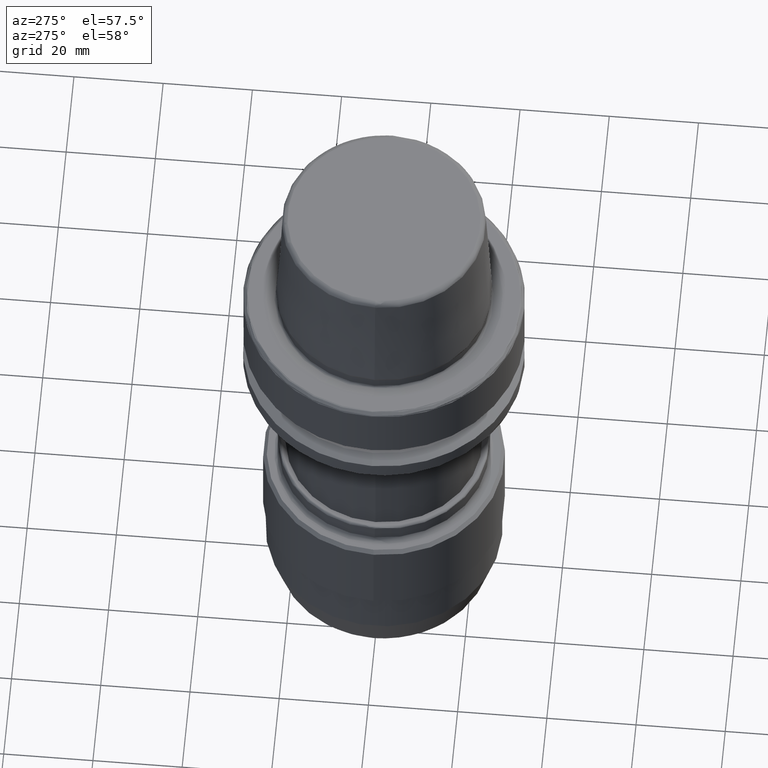
[diagram: clean part render]
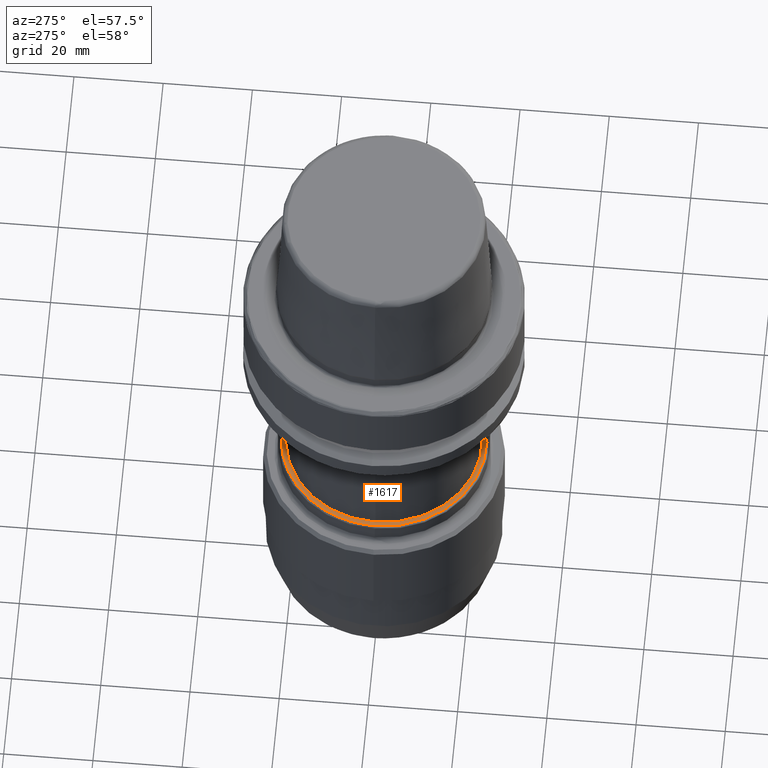
[diagram: same view with one face highlighted and labeled with its STEP entity id]
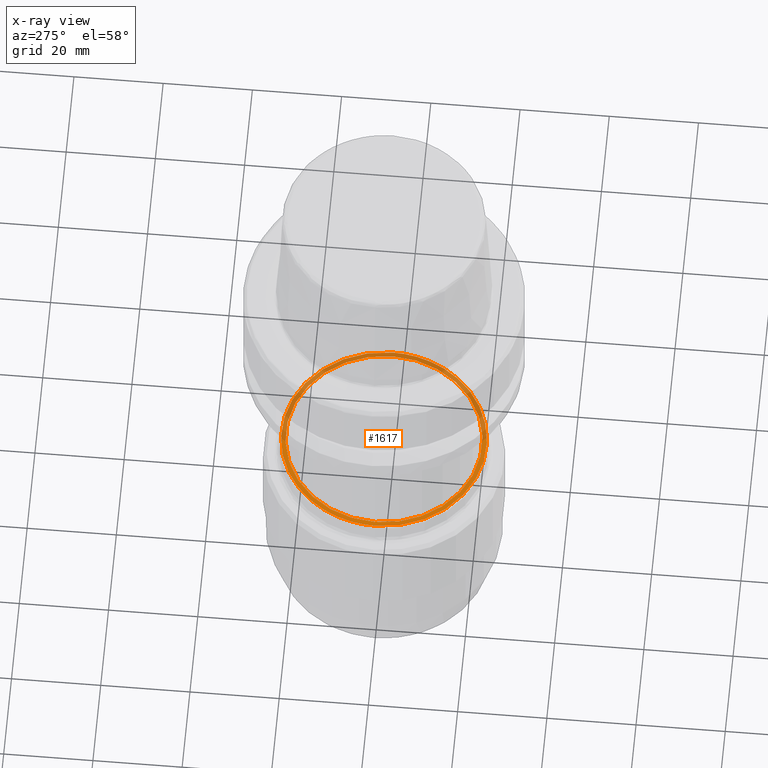
[diagram: x-ray of the same camera — body ghosted, the highlighted face saturated]
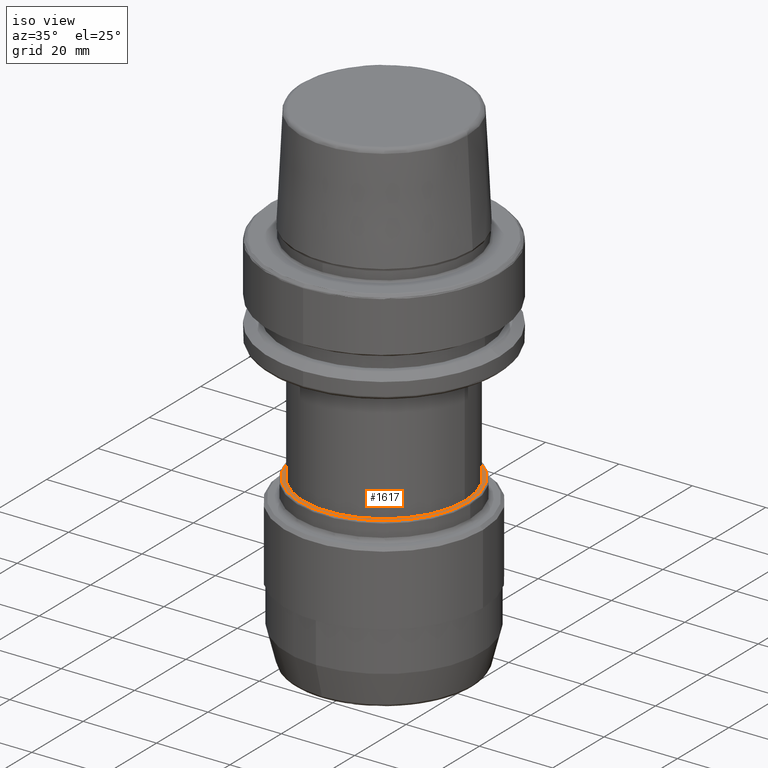
[diagram: same view with one face highlighted and labeled with its STEP entity id]
A machine part, auxiliary view. The second image highlights one B-rep face of the part: STEP entity #1617.
The next image is the same camera in x-ray: the body ghosted, the highlighted face saturated — about 50% of this face is hidden behind the body in this view.
A second angle (iso view) of the same face is appended — the face is thin or edge-on in the first view.
In plain terms, the highlighted planar face has unit normal (0, 0, 1).
Its self-contained STEP definition (entity closure, byte-faithful):
#16 = CIRCLE ( 'NONE', #2856, 22.00000000000000000 ) ;
#35 = CARTESIAN_POINT ( 'NONE',  ( 20.66522424574176100, -10.09697488967564500, -59.49999999999999300 ) ) ;
#47 = CARTESIAN_POINT ( 'NONE',  ( 22.05992292392925700, -6.508493612026682300, -59.49999999999999300 ) ) ;
#52 = CARTESIAN_POINT ( 'NONE',  ( -20.79786083574472900, -9.821447311092566000, -59.50000000000000000 ) ) ;
#63 = CARTESIAN_POINT ( 'NONE',  ( 22.93215339313308800, -2.040091979022315500, -59.50000000000000700 ) ) ;
#86 = CARTESIAN_POINT ( 'NONE',  ( 15.08453624196029900, -17.36258499187869500, -59.50000000000000700 ) ) ;
#99 = CARTESIAN_POINT ( 'NONE',  ( 2.387982325141912600, -22.87695554781839700, -59.50000000000002100 ) ) ;
#102 = CIRCLE ( 'NONE', #308, 22.00000000000000000 ) ;
#111 = CARTESIAN_POINT ( 'NONE',  ( -20.70977871296102500, -10.00527097587450200, -59.50000000000000700 ) ) ;
#120 = CARTESIAN_POINT ( 'NONE',  ( 22.79885930809124200, 3.035180820998445200, -59.50000000000001400 ) ) ;
#121 = CARTESIAN_POINT ( 'NONE',  ( -18.45597381487192500, -13.72506864018222700, -59.50000000000000700 ) ) ;
#124 = ORIENTED_EDGE ( 'NONE', *, *, #3250, .T. ) ;
#126 = CARTESIAN_POINT ( 'NONE',  ( 20.53658639873601300, -10.35675156209093100, -59.50000000000000000 ) ) ;
#130 = CARTESIAN_POINT ( 'NONE',  ( 21.15201609605264500, 9.043343005588173600, -59.50000000000000700 ) ) ;
#131 = CARTESIAN_POINT ( 'NONE',  ( -22.09765112123246700, -6.379211892784336000, -59.50000000000000000 ) ) ;
#147 = CARTESIAN_POINT ( 'NONE',  ( 19.67878119363517100, 11.90571376356794200, -59.50000000000000000 ) ) ;
#149 = CARTESIAN_POINT ( 'NONE',  ( -16.61255570229569800, -15.91203029314741000, -59.49999999999999300 ) ) ;
#154 = DIRECTION ( 'NONE',  ( 0.0000000000000000000, 0.0000000000000000000, 1.000000000000000000 ) ) ;
#159 = CARTESIAN_POINT ( 'NONE',  ( 17.12367565320339900, 15.35567057690230500, -59.50000000000001400 ) ) ;
#168 = CARTESIAN_POINT ( 'NONE',  ( 14.30461680220053100, 18.01945522958110900, -59.49999999999999300 ) ) ;
#172 = AXIS2_PLACEMENT_3D ( 'NONE', #2687, #154, #2124 ) ;
#182 = CARTESIAN_POINT ( 'NONE',  ( 10.41982548758412900, 20.50943807753031200, -59.50000000000000000 ) ) ;
#194 = FACE_BOUND ( 'NONE', #3175, .T. ) ;
#195 = CARTESIAN_POINT ( 'NONE',  ( 5.200894302168799200, 22.40930823104833500, -59.50000000000000700 ) ) ;
#196 = CARTESIAN_POINT ( 'NONE',  ( 18.37046913865779600, -13.83930719918026500, -59.49999999999998600 ) ) ;
#207 = CARTESIAN_POINT ( 'NONE',  ( -4.038782402329498900, 22.65138241706130600, -59.50000000000002100 ) ) ;
#220 = CARTESIAN_POINT ( 'NONE',  ( -9.389816576225857900, 21.00473986116978200, -59.50000000000002100 ) ) ;
#221 = CARTESIAN_POINT ( 'NONE',  ( -21.58466066212036000, -7.990724506890395600, -59.50000000000000700 ) ) ;
#234 = CARTESIAN_POINT ( 'NONE',  ( -13.44853690660021600, 18.66336242289260400, -59.50000000000000700 ) ) ;
#240 = CARTESIAN_POINT ( 'NONE',  ( -10.87399240271814300, -20.26720259355949200, -59.50000000000000700 ) ) ;
#247 = CARTESIAN_POINT ( 'NONE',  ( -16.85683675635345600, 15.64760918115961800, -59.50000000000002100 ) ) ;
#251 = CARTESIAN_POINT ( 'NONE',  ( -12.17288666840175500, -19.52351137654588300, -59.49999999999999300 ) ) ;
#257 = CARTESIAN_POINT ( 'NONE',  ( -19.48413069940165000, 12.22227024854963400, -59.50000000000000000 ) ) ;
#262 = CARTESIAN_POINT ( 'NONE',  ( 4.038782402347465900, -22.65138241705673400, -59.50000000000000700 ) ) ;
#270 = CARTESIAN_POINT ( 'NONE',  ( -20.96001517139128700, 9.492309152873602300, -59.50000000000000000 ) ) ;
#282 = CARTESIAN_POINT ( 'NONE',  ( -22.72456693722626800, 3.554048444780064700, -59.50000000000002800 ) ) ;
#284 = CARTESIAN_POINT ( 'NONE',  ( -22.85211559814503000, -2.609520141429211300, -59.50000000000002800 ) ) ;
#306 = CARTESIAN_POINT ( 'NONE',  ( -7.234871626525709600, -21.84127853978892700, -59.50000000000000000 ) ) ;
#308 = AXIS2_PLACEMENT_3D ( 'NONE', #3008, #1301, #3314 ) ;
#320 = CARTESIAN_POINT ( 'NONE',  ( 20.39588934328472500, -10.63310135159051300, -59.50000000000000000 ) ) ;
#333 = CARTESIAN_POINT ( 'NONE',  ( 22.07428257155218200, -6.459576964124560000, -59.50000000000000700 ) ) ;
#339 = CARTESIAN_POINT ( 'NONE',  ( 10.62108004713757500, -20.40087980775835400, -59.50000000000000700 ) ) ;
#345 = CARTESIAN_POINT ( 'NONE',  ( 22.99999999587038200, 0.0000000000000000000, -59.49999999984027700 ) ) ;
#373 = CARTESIAN_POINT ( 'NONE',  ( 14.55116244014986500, -17.81416953367102400, -59.50000000000000000 ) ) ;
#385 = CARTESIAN_POINT ( 'NONE',  ( 3.335386668910615500, -22.76184523986317700, -59.50000000000000000 ) ) ;
#395 = CARTESIAN_POINT ( 'NONE',  ( 10.77452794148912800, -20.32025034848193500, -59.50000000000001400 ) ) ;
#411 = CARTESIAN_POINT ( 'NONE',  ( 22.57255135874123700, 4.479785530892701900, -59.50000000000002100 ) ) ;
#425 = CARTESIAN_POINT ( 'NONE',  ( 20.79786083575651600, 9.821447311064627400, -59.50000000000000700 ) ) ;
#426 = CARTESIAN_POINT ( 'NONE',  ( -22.08505879249765200, -6.422635208564694100, -59.50000000000000000 ) ) ;
#434 = CARTESIAN_POINT ( 'NONE',  ( 19.46167955326121700, 12.26308115030154000, -59.50000000000000700 ) ) ;
#435 = CARTESIAN_POINT ( 'NONE',  ( -15.65945506830770200, -16.84802598621485400, -59.50000000000001400 ) ) ;
#444 = CARTESIAN_POINT ( 'NONE',  ( 16.95838721572216600, 15.53749148302091900, -59.50000000000002100 ) ) ;
#455 = CARTESIAN_POINT ( 'NONE',  ( 13.40309264651337500, 18.69163638887289700, -59.50000000000001400 ) ) ;
#467 = CARTESIAN_POINT ( 'NONE',  ( 9.073893686292329600, 21.13662212336848300, -59.50000000000000000 ) ) ;
#476 = CARTESIAN_POINT ( 'NONE',  ( 3.804147953302674500, 22.68449142458442200, -59.50000000000001400 ) ) ;
#477 = CARTESIAN_POINT ( 'NONE',  ( 18.62429182585068000, -13.50095831894854800, -59.50000000000001400 ) ) ;
#487 = CARTESIAN_POINT ( 'NONE',  ( -5.199710901648903600, 22.40485234171319500, -59.50000000000000700 ) ) ;
#504 = CARTESIAN_POINT ( 'NONE',  ( -10.46878282113388900, 20.47993162504294400, -59.50000000000000700 ) ) ;
#505 = CARTESIAN_POINT ( 'NONE',  ( 7.564360981174422300, -21.72273286849345900, -59.50000000000000000 ) ) ;
#514 = CARTESIAN_POINT ( 'NONE',  ( -14.55116244017394700, 17.81416953364976100, -59.50000000000001400 ) ) ;
#526 = CARTESIAN_POINT ( 'NONE',  ( -17.15852861154048600, 15.32121843342708800, -59.50000000000000700 ) ) ;
#532 = CARTESIAN_POINT ( 'NONE',  ( -10.92149909948859600, -20.24163703822136600, -59.49999999999999300 ) ) ;
#539 = CARTESIAN_POINT ( 'NONE',  ( -19.60706401786943300, 12.02345695376921100, -59.49999999999999300 ) ) ;
#551 = CARTESIAN_POINT ( 'NONE',  ( -21.73762290850370600, 7.527653890420124200, -59.50000000000001400 ) ) ;
#554 = CARTESIAN_POINT ( 'NONE',  ( 12.77481738688463200, -19.12657107637325600, -59.50000000000000700 ) ) ;
#558 = CARTESIAN_POINT ( 'NONE',  ( -22.77935982841406900, 3.178523364605224900, -59.49999999999999300 ) ) ;
#559 = CARTESIAN_POINT ( 'NONE',  ( -22.81106972563253500, -2.942247673499529100, -59.50000000000002100 ) ) ;
#594 = EDGE_CURVE ( 'NONE', #1153, #2109, #1646, .T. ) ;
#606 = CARTESIAN_POINT ( 'NONE',  ( 22.24197725999282600, -5.884695386095676100, -59.49999999999999300 ) ) ;
#609 = CARTESIAN_POINT ( 'NONE',  ( 8.113461293119472700, -21.52150413981969000, -59.50000000000001400 ) ) ;
#673 = CARTESIAN_POINT ( 'NONE',  ( 22.99999999587038200, 0.0000000000000000000, -59.49999999984027700 ) ) ;
#675 = CARTESIAN_POINT ( 'NONE',  ( 11.79361950100164700, -19.75492928910628300, -59.50000000000000700 ) ) ;
#688 = CARTESIAN_POINT ( 'NONE',  ( 22.21712838802288600, 5.952848647696162000, -59.50000000000000700 ) ) ;
#698 = CARTESIAN_POINT ( 'NONE',  ( 20.70977871296453900, 10.00527097586614500, -59.49999999999999300 ) ) ;
#699 = CARTESIAN_POINT ( 'NONE',  ( -22.57255135873597100, -4.479785530957818700, -59.50000000000002100 ) ) ;
#712 = CARTESIAN_POINT ( 'NONE',  ( 18.78620911173731400, 13.27176532526140900, -59.50000000000000700 ) ) ;
#713 = CARTESIAN_POINT ( 'NONE',  ( -15.27781081951261800, -17.19276222298245200, -59.50000000000001400 ) ) ;
#724 = CARTESIAN_POINT ( 'NONE',  ( 16.90925625284416300, 15.59094892657418000, -59.50000000000001400 ) ) ;
#725 = CARTESIAN_POINT ( 'NONE',  ( 19.64428513433246000, -11.96254690846213200, -59.50000000000000000 ) ) ;
#732 = CARTESIAN_POINT ( 'NONE',  ( 13.18414993370315200, 18.84624616094537300, -59.50000000000001400 ) ) ;
#746 = CARTESIAN_POINT ( 'NONE',  ( 8.545015114365901000, 21.35382750747576000, -59.50000000000000700 ) ) ;
#760 = CARTESIAN_POINT ( 'NONE',  ( 3.101440613758909700, 22.79118601701064900, -59.50000000000000700 ) ) ;
#762 = CARTESIAN_POINT ( 'NONE',  ( 19.30919508850941900, -12.49865517238154000, -59.50000000000001400 ) ) ;
#775 = CARTESIAN_POINT ( 'NONE',  ( -5.548134250651418000, 22.32110591976023500, -59.50000000000001400 ) ) ;
#786 = CARTESIAN_POINT ( 'NONE',  ( -10.72243621599578000, 20.34779009984131500, -59.50000000000000700 ) ) ;
#797 = CARTESIAN_POINT ( 'NONE',  ( -14.96107667132794100, 17.46908692421600400, -59.50000000000001400 ) ) ;
#811 = CARTESIAN_POINT ( 'NONE',  ( -17.98026825603988500, 14.34495984953208800, -59.50000000000002100 ) ) ;
#820 = CARTESIAN_POINT ( 'NONE',  ( -19.64428513433109900, 11.96254690846489900, -59.50000000000000000 ) ) ;
#832 = CARTESIAN_POINT ( 'NONE',  ( -21.99863450026362300, 6.713562252800826100, -59.50000000000002800 ) ) ;
#835 = CARTESIAN_POINT ( 'NONE',  ( -19.70169133256450100, -11.86776224913700900, -59.50000000000000000 ) ) ;
#838 = CARTESIAN_POINT ( 'NONE',  ( -11.16531239952258000, -20.10864162827591200, -59.50000000000000000 ) ) ;
#848 = CARTESIAN_POINT ( 'NONE',  ( -22.79163671802236000, 3.088946796763883700, -59.50000000000001400 ) ) ;
#872 = CARTESIAN_POINT ( 'NONE',  ( -13.14173749839774400, -18.87585134383119400, -59.50000000000000700 ) ) ;
#898 = CARTESIAN_POINT ( 'NONE',  ( 22.64336211516326700, -4.052991602755052500, -59.50000000000002100 ) ) ;
#902 = CARTESIAN_POINT ( 'NONE',  ( 8.278767660438102600, -21.45845325741526800, -59.50000000000002100 ) ) ;
#913 = CARTESIAN_POINT ( 'NONE',  ( -23.00000000080507000, -0.5110257653236590600, -59.50000000000000700 ) ) ;
#923 = CARTESIAN_POINT ( 'NONE',  ( 15.88687213992910300, -16.64045058434382100, -59.50000000000001400 ) ) ;
#958 = CARTESIAN_POINT ( 'NONE',  ( 22.97455752292806600, 1.275932257485925500, -59.50000000000001400 ) ) ;
#959 = CARTESIAN_POINT ( 'NONE',  ( 9.389816576232263400, -21.00473986117243900, -59.50000000000000000 ) ) ;
#963 = ORIENTED_EDGE ( 'NONE', *, *, #2323, .T. ) ;
#972 = CARTESIAN_POINT ( 'NONE',  ( 22.11515650682025600, 6.318393553546652400, -59.50000000000002100 ) ) ;
#989 = CARTESIAN_POINT ( 'NONE',  ( 20.68386182690957400, 10.05874386595311500, -59.50000000000000700 ) ) ;
#991 = CARTESIAN_POINT ( 'NONE',  ( -22.80485818318208400, -2.989757863450289900, -59.50000000000000000 ) ) ;
#1003 = CARTESIAN_POINT ( 'NONE',  ( 18.49779840918533600, 13.66876692144525400, -59.50000000000002800 ) ) ;
#1004 = CARTESIAN_POINT ( 'NONE',  ( -15.16366414224429900, -17.29352784975865400, -59.50000000000000700 ) ) ;
#1015 = CARTESIAN_POINT ( 'NONE',  ( 16.18205556853752500, 16.35354234595758900, -59.50000000000000000 ) ) ;
#1016 = CARTESIAN_POINT ( 'NONE',  ( 20.10511678210353300, -11.18055066940808100, -59.50000000000000000 ) ) ;
#1027 = CARTESIAN_POINT ( 'NONE',  ( 12.73086870021281000, 19.16044903814865600, -59.50000000000000000 ) ) ;
#1028 = CARTESIAN_POINT ( 'NONE',  ( 17.98026825602925900, -14.34495984954654300, -59.50000000000002100 ) ) ;
#1042 = CARTESIAN_POINT ( 'NONE',  ( 8.386603094788474900, 21.41654147720387500, -59.50000000000001400 ) ) ;
#1051 = CARTESIAN_POINT ( 'NONE',  ( 0.9579673822228034200, 22.99997709239239200, -59.49999999999999300 ) ) ;
#1052 = CARTESIAN_POINT ( 'NONE',  ( 19.57036852003459200, -12.08322835671327400, -59.50000000000000700 ) ) ;
#1063 = CARTESIAN_POINT ( 'NONE',  ( -6.789185065614785400, 21.98389862216602700, -59.50000000000000000 ) ) ;
#1064 = CARTESIAN_POINT ( 'NONE',  ( -1.913303693207689900, -22.94031429927654000, -59.50000000000000700 ) ) ;
#1081 = CARTESIAN_POINT ( 'NONE',  ( -11.21554117738053500, 20.08505603816933400, -59.50000000000002800 ) ) ;
#1089 = CARTESIAN_POINT ( 'NONE',  ( -15.08453624195899100, 17.36258499187981000, -59.50000000000001400 ) ) ;
#1095 = CARTESIAN_POINT ( 'NONE',  ( -10.41982548754693600, -20.50943807754625700, -59.50000000000000700 ) ) ;
#1100 = CARTESIAN_POINT ( 'NONE',  ( -18.29632699985511500, 13.93730814982911400, -59.50000000000000000 ) ) ;
#1114 = CARTESIAN_POINT ( 'NONE',  ( -20.10511678214136600, 11.18055066933046000, -59.50000000000001400 ) ) ;
#1119 = CARTESIAN_POINT ( 'NONE',  ( -3.804147953256559900, -22.68449142459822500, -59.50000000000001400 ) ) ;
#1127 = CARTESIAN_POINT ( 'NONE',  ( -22.05992292393043600, 6.508493612024240700, -59.50000000000001400 ) ) ;
#1131 = CARTESIAN_POINT ( 'NONE',  ( -19.66791802568312200, -11.92365386745089500, -59.50000000000000000 ) ) ;
#1141 = CARTESIAN_POINT ( 'NONE',  ( -22.93215339313307800, 2.040091979048324100, -59.50000000000002100 ) ) ;
#1144 = CARTESIAN_POINT ( 'NONE',  ( -8.438680508779755800, -21.39607133540687700, -59.50000000000002100 ) ) ;
#1153 = VERTEX_POINT ( 'NONE', #1391 ) ;
#1180 = CARTESIAN_POINT ( 'NONE',  ( 21.35013890892946300, -8.597720792739854900, -59.50000000000001400 ) ) ;
#1183 = CARTESIAN_POINT ( 'NONE',  ( -20.68386182690940000, -10.05874386595377600, -59.50000000000000700 ) ) ;
#1191 = CARTESIAN_POINT ( 'NONE',  ( 22.76167750519537200, -3.303823887688162900, -59.50000000000000000 ) ) ;
#1194 = CARTESIAN_POINT ( 'NONE',  ( -18.41473674897415700, -13.78035007690154700, -59.50000000000000000 ) ) ;
#1213 = EDGE_LOOP ( 'NONE', ( #963, #3410 ) ) ;
#1220 = CARTESIAN_POINT ( 'NONE',  ( 16.64557730038610500, -15.87272183321548600, -59.50000000000002800 ) ) ;
#1252 = CARTESIAN_POINT ( 'NONE',  ( 22.85211559814501900, 2.609520141439149600, -59.50000000000000700 ) ) ;
#1253 = CARTESIAN_POINT ( 'NONE',  ( -17.79884645723078400, -14.57642736041852400, -59.50000000000001400 ) ) ;
#1264 = CARTESIAN_POINT ( 'NONE',  ( 22.09010196977203200, 6.405267177904225000, -59.50000000000002800 ) ) ;
#1273 = CARTESIAN_POINT ( 'NONE',  ( 20.27513429611365200, 10.86919169529050900, -59.49999999999999300 ) ) ;
#1274 = CARTESIAN_POINT ( 'NONE',  ( -22.79885930809134800, -3.035180820997282100, -59.50000000000000700 ) ) ;
#1279 = PLANE ( 'NONE',  #172 ) ;
#1283 = CARTESIAN_POINT ( 'NONE',  ( 18.42803141242499600, 13.76256380554665500, -59.50000000000002100 ) ) ;
#1284 = CARTESIAN_POINT ( 'NONE',  ( -17.00816543121250700, -15.48310221194310400, -59.50000000000000000 ) ) ;
#1297 = CARTESIAN_POINT ( 'NONE',  ( 15.39306723202918700, 17.09011436777881000, -59.50000000000000000 ) ) ;
#1301 = DIRECTION ( 'NONE',  ( -0.0000000000000000000, 0.0000000000000000000, -1.000000000000000000 ) ) ;
#1308 = CARTESIAN_POINT ( 'NONE',  ( 11.50413293801884300, 19.91838191012276800, -59.50000000000000000 ) ) ;
#1309 = CARTESIAN_POINT ( 'NONE',  ( 16.85683675635217300, -15.64760918116070700, -59.50000000000000700 ) ) ;
#1320 = CARTESIAN_POINT ( 'NONE',  ( 7.234871626526063100, 21.84127853979145000, -59.50000000000001400 ) ) ;
#1332 = CARTESIAN_POINT ( 'NONE',  ( -1.196198113153990300, 22.97764650388889900, -59.50000000000001400 ) ) ;
#1333 = CARTESIAN_POINT ( 'NONE',  ( 19.63146911237730300, -11.98356890277593900, -59.50000000000000700 ) ) ;
#1341 = B_SPLINE_CURVE_WITH_KNOTS ( 'NONE', 3,
 ( #673, #2654, #958, #2953, #1252, #3257, #1526, #3554, #1814, #120, #2095, #411, #2380, #688, #2670, #972, #2962, #1264, #3271, #1536, #3567, #1831, #130, #2104, #425, #2396, #698, #2682, #989, #2976, #1273, #3288, #1550, #3580, #1842, #147, #2117, #434, #2410, #712, #2697, #1003, #2990, #1283, #3294, #1565, #3595, #1850, #159, #2132, #444, #2417, #724, #2713, #1015, #3004, #1297, #3308, #1575, #3603, #1862, #168, #2142, #455, #2427, #732, #2727, #1027, #3014, #1308, #3321, #1585, #3610, #1878, #182, #2151, #467, #2441, #746, #2737, #1042, #3032, #1320, #3334, #1599, #3619, #1886, #195, #2163, #476, #2452, #760, #2746, #1051, #3047, #1332, #3348, #1612, #3636, #1899, #207, #2179, #487, #2463, #775, #2763, #1063, #3059, #1348, #3364, #1621, #3649, #1915, #220, #2188, #504, #2479, #786, #2776, #1081, #3070, #1358, #3382, #1636, #3659, #1928, #234, #2199, #514, #2495, #797, #2785, #1089, #3088, #1368, #3388, #1651, #3672, #1936, #247, #2215, #526, #2504, #811, #2796, #1100, #3098, #1381, #3400, #1661, #3682, #1947, #257, #2230, #539, #2516, #820, #2807, #1114, #3108, #1392, #3417, #1669, #3693, #1960, #270, #2239, #551, #2531, #832, #2818, #1127, #3120, #1400, #3429, #1685, #3701, #1971, #282, #2252, #558, #2543, #848, #2830, #1141, #3137, #1411 ),
 .UNSPECIFIED., .F., .F.,
 ( 4, 1, 1, 1, 1, 1, 2, 2, 1, 1, 1, 1, 1, 1, 2, 2, 1, 1, 1, 1, 1, 2, 2, 1, 1, 1, 1, 2, 2, 1, 1, 1, 1, 2, 2, 1, 1, 1, 1, 2, 2, 1, 1, 1, 2, 2, 1, 1, 1, 2, 2, 1, 1, 1, 2, 2, 1, 1, 1, 2, 2, 1, 1, 2, 2, 1, 2, 2, 2, 1, 2, 2, 1, 1, 2, 2, 1, 1, 1, 2, 2, 1, 1, 1, 2, 2, 1, 1, 1, 2, 2, 1, 1, 1, 2, 2, 1, 1, 1, 1, 2, 2, 1, 1, 1, 1, 2, 2, 1, 1, 1, 1, 2, 2, 1, 1, 1, 1, 2, 2, 1, 1, 1, 1, 1, 1, 2, 2, 1, 1, 1, 1, 1, 2, 2, 4 ),
 ( 0.0000000000000000000, 0.03125000000001304500, 0.04687500000001956100, 0.05468750000002282200, 0.05859375000002442500, 0.06054687500002522300, 0.06152343750002562500, 0.06250000000002602100, 0.09375000000003924600, 0.1093750000000458400, 0.1171875000000491400, 0.1210937500000507800, 0.1230468750000516100, 0.1240234375000520400, 0.1245117187500521900, 0.1250000000000523500, 0.1562500000000647800, 0.1718750000000710300, 0.1796875000000741100, 0.1835937500000755800, 0.1855468750000763000, 0.1865234375000766100, 0.1875000000000769400, 0.2031250000000810200, 0.2109375000000830400, 0.2148437500000841000, 0.2167968750000846500, 0.2177734375000848800, 0.2187500000000851300, 0.2343750000000872600, 0.2421875000000882600, 0.2460937500000887600, 0.2480468750000891000, 0.2490234375000892100, 0.2500000000000893200, 0.2656250000000894800, 0.2734375000000895400, 0.2773437500000895400, 0.2792968750000895400, 0.2802734375000895900, 0.2812500000000895900, 0.2968750000000887600, 0.3046875000000883700, 0.3085937500000882100, 0.3105468750000880400, 0.3125000000000879300, 0.3281250000000873700, 0.3359375000000871500, 0.3398437500000871000, 0.3417968750000869900, 0.3437500000000869300, 0.3593750000000863200, 0.3671875000000861000, 0.3710937500000859900, 0.3730468750000858800, 0.3750000000000858200, 0.3906250000000854900, 0.3984375000000853800, 0.4023437500000853800, 0.4042968750000853200, 0.4062500000000853200, 0.4218750000000855400, 0.4296875000000857100, 0.4335937500000858200, 0.4375000000000858800, 0.4531250000000860400, 0.4609375000000861500, 0.4687500000000862600, 0.5000000000000867100, 0.5156250000000869300, 0.5234375000000870400, 0.5312500000000871500, 0.5468750000000873700, 0.5546875000000876000, 0.5585937500000876000, 0.5625000000000877100, 0.5781250000000880400, 0.5859375000000881500, 0.5898437500000882600, 0.5917968750000882600, 0.5937500000000882600, 0.6093750000000880400, 0.6171875000000879300, 0.6210937500000877100, 0.6230468750000877100, 0.6250000000000876000, 0.6406250000000872600, 0.6484375000000871500, 0.6523437500000871500, 0.6542968750000870400, 0.6562500000000869300, 0.6718750000000861500, 0.6796875000000858200, 0.6835937500000856000, 0.6855468750000856000, 0.6875000000000854900, 0.7031250000000846000, 0.7109375000000841500, 0.7148437500000839300, 0.7167968750000836000, 0.7177734375000834900, 0.7187500000000832700, 0.7343750000000799400, 0.7421875000000783800, 0.7460937500000774900, 0.7480468750000771600, 0.7490234375000769400, 0.7500000000000768300, 0.7656250000000731600, 0.7734375000000712800, 0.7773437500000703900, 0.7792968750000698300, 0.7802734375000696100, 0.7812500000000692800, 0.7968750000000645000, 0.8046875000000621700, 0.8085937500000609500, 0.8105468750000605100, 0.8115234375000601700, 0.8125000000000599500, 0.8437500000000509600, 0.8593750000000465200, 0.8671875000000443000, 0.8710937500000430800, 0.8730468750000426300, 0.8740234375000423000, 0.8745117187500421900, 0.8750000000000420800, 0.9062500000000310900, 0.9218750000000256500, 0.9296875000000229800, 0.9335937500000215400, 0.9355468750000209800, 0.9365234375000205400, 0.9375000000000202100, 1.000000000000000000 ),
 .UNSPECIFIED. ) ;
#1348 = CARTESIAN_POINT ( 'NONE',  ( -7.949150904697146000, 21.58321326709969400, -59.50000000000001400 ) ) ;
#1358 = CARTESIAN_POINT ( 'NONE',  ( -12.45065039449285700, 19.34084632841883400, -59.50000000000002800 ) ) ;
#1368 = CARTESIAN_POINT ( 'NONE',  ( -15.88687213994739800, 16.64045058432816800, -59.50000000000001400 ) ) ;
#1381 = CARTESIAN_POINT ( 'NONE',  ( -18.37046913865878800, 13.83930719917890600, -59.50000000000000700 ) ) ;
#1391 = CARTESIAN_POINT ( 'NONE',  ( -22.99999999587038200, 0.0000000000000000000, -59.49999999984027700 ) ) ;
#1392 = CARTESIAN_POINT ( 'NONE',  ( -20.53658639875257200, 10.35675156205695300, -59.50000000000001400 ) ) ;
#1400 = CARTESIAN_POINT ( 'NONE',  ( -22.07428257155253000, 6.459576964123860100, -59.50000000000001400 ) ) ;
#1406 = CARTESIAN_POINT ( 'NONE',  ( 5.199710901657570400, -22.40485234171100300, -59.50000000000000700 ) ) ;
#1411 = CARTESIAN_POINT ( 'NONE',  ( -22.99999999587038200, 0.0000000000000000000, -59.49999999984027700 ) ) ;
#1441 = CARTESIAN_POINT ( 'NONE',  ( -13.70685029090472500, -18.47168773512564500, -59.50000000000000000 ) ) ;
#1448 = CARTESIAN_POINT ( 'NONE',  ( 21.91444981804057700, -6.986025318777803000, -59.50000000000000000 ) ) ;
#1451 = CARTESIAN_POINT ( 'NONE',  ( -20.27513429611841600, -10.86919169527197600, -59.50000000000000000 ) ) ;
#1463 = CARTESIAN_POINT ( 'NONE',  ( 22.78675090391524400, -3.124782802317057000, -59.50000000000000000 ) ) ;
#1468 = CARTESIAN_POINT ( 'NONE',  ( -19.46167955328855800, -12.26308115026301400, -59.50000000000002100 ) ) ;
#1478 = CARTESIAN_POINT ( 'NONE',  ( -22.97455752292808000, -1.275932257463205000, -59.50000000000002100 ) ) ;
#1486 = CARTESIAN_POINT ( 'NONE',  ( 16.82178082617554400, -15.68528886550264400, -59.50000000000001400 ) ) ;
#1500 = CARTESIAN_POINT ( 'NONE',  ( 5.430872458285897200, -22.34993709043687500, -59.50000000000002100 ) ) ;
#1516 = CARTESIAN_POINT ( 'NONE',  ( -19.81536675388467500, -11.67753864580774000, -59.50000000000000000 ) ) ;
#1526 = CARTESIAN_POINT ( 'NONE',  ( 22.81106972563251700, 2.942247673502271800, -59.50000000000000700 ) ) ;
#1527 = CARTESIAN_POINT ( 'NONE',  ( -17.12367565323412300, -15.35567057686301600, -59.50000000000000000 ) ) ;
#1536 = CARTESIAN_POINT ( 'NONE',  ( 22.08285365257213700, 6.430215240748580600, -59.50000000000001400 ) ) ;
#1550 = CARTESIAN_POINT ( 'NONE',  ( 19.81536675388259300, 11.67753864581585100, -59.50000000000000700 ) ) ;
#1551 = CARTESIAN_POINT ( 'NONE',  ( -22.14973007337646400, -6.196666179316205000, -59.50000000000000000 ) ) ;
#1556 = DIRECTION ( 'NONE',  ( -0.0000000000000000000, 0.0000000000000000000, -1.000000000000000000 ) ) ;
#1565 = CARTESIAN_POINT ( 'NONE',  ( 18.16421202732236400, 14.11439877282844100, -59.50000000000001400 ) ) ;
#1566 = CARTESIAN_POINT ( 'NONE',  ( -16.92514088660818300, -15.57370115553536700, -59.50000000000000700 ) ) ;
#1575 = CARTESIAN_POINT ( 'NONE',  ( 15.20073094512945000, 17.26094872464309300, -59.50000000000000700 ) ) ;
#1585 = CARTESIAN_POINT ( 'NONE',  ( 11.01915138159462900, 20.18864388991801600, -59.50000000000002800 ) ) ;
#1599 = CARTESIAN_POINT ( 'NONE',  ( 6.114110776620983700, 22.17276689859021100, -59.50000000000002100 ) ) ;
#1601 = CARTESIAN_POINT ( 'NONE',  ( 18.34084828128858600, -13.87853809907892400, -59.50000000000001400 ) ) ;
#1612 = CARTESIAN_POINT ( 'NONE',  ( -2.387982325122137700, 22.87695554781972300, -59.49999999999999300 ) ) ;
#1617 = ADVANCED_FACE ( 'NONE', ( #194, #3140 ), #1279, .T. ) ;
#1621 = CARTESIAN_POINT ( 'NONE',  ( -8.222868312356240500, 21.47993916331692800, -59.50000000000000700 ) ) ;
#1636 = CARTESIAN_POINT ( 'NONE',  ( -12.91281428626457400, 19.03318873156422000, -59.50000000000002800 ) ) ;
#1646 = B_SPLINE_CURVE_WITH_KNOTS ( 'NONE', 3,
 ( #2902, #913, #1478, #3516, #284, #2256, #559, #991, #2977, #1274, #2397, #699, #2683, #3289, #1551, #3581, #131, #2105, #426, #3650, #1917, #221, #3488, #1741, #52, #1799, #111, #2083, #1183, #3185, #1451, #3244, #1516, #3541, #835, #2820, #1131, #1468, #3502, #1750, #3556, #1815, #121, #2891, #1194, #3199, #1253, #3258, #1527, #1284, #3295, #1566, #1843, #149, #2118, #435, #2411, #713, #2698, #1004, #2992, #3166, #1441, #3476, #1692, #1676, #872, #2221, #251, #1942, #838, #2508, #532, #240, #1095, #3093, #1715, #2571, #2013, #1144, #2823, #3461, #306, #2812, #3687, #3435, #2205, #3707, #2855, #1119, #2235, #2765, #1064, #3060, #3446, #2868, #3142, #99, #2067, #385, #262, #1703, #1406, #1500, #3528, #1791, #2189, #505, #2533, #609, #2596, #902, #2655, #959, #2954, #2024, #339, #2311, #395, #2366, #675, #2243, #554, #2276, #2790, #2500, #2521, #2057, #373, #2344, #3523, #1778, #86, #2615, #923, #2913, #1220, #3220, #1486, #1309, #3323, #3620, #1887, #1028, #3015, #3335, #1601, #196, #2164, #477, #2453, #762, #2747, #1052, #3049, #1333, #725, #2714, #1016, #320, #126, #1827, #3565, #2009, #35, #2874, #1180, #3180, #1448, #3484, #1738, #47, #2021, #333, #2307, #606, #2593, #898, #2886, #1191, #3197, #1463, #3498, #1747, #63, #2030, #345 ),
 .UNSPECIFIED., .F., .F.,
 ( 4, 1, 1, 1, 1, 1, 2, 2, 1, 1, 1, 1, 1, 1, 2, 2, 1, 1, 1, 1, 1, 2, 2, 1, 1, 1, 1, 2, 2, 1, 1, 1, 1, 2, 2, 1, 1, 1, 1, 2, 2, 1, 1, 1, 2, 2, 1, 1, 1, 2, 2, 1, 1, 1, 2, 2, 1, 1, 1, 2, 2, 1, 1, 2, 2, 1, 2, 2, 2, 1, 2, 2, 1, 1, 2, 2, 1, 1, 1, 2, 2, 1, 1, 1, 2, 2, 1, 1, 1, 2, 2, 1, 1, 1, 2, 2, 1, 1, 1, 1, 2, 2, 1, 1, 1, 1, 2, 2, 1, 1, 1, 1, 2, 2, 1, 1, 1, 1, 2, 2, 1, 1, 1, 1, 1, 1, 2, 2, 1, 1, 1, 1, 1, 2, 2, 4 ),
 ( 0.0000000000000000000, 0.03125000000000411500, 0.04687500000000616200, 0.05468750000000720300, 0.05859375000000773000, 0.06054687500000800700, 0.06152343750000813200, 0.06250000000000825700, 0.09375000000001236500, 0.1093750000000144100, 0.1171875000000154500, 0.1210937500000159200, 0.1230468750000161300, 0.1240234375000162200, 0.1245117187500162800, 0.1250000000000163500, 0.1562500000000215700, 0.1718750000000240900, 0.1796875000000253400, 0.1835937500000259800, 0.1855468750000262800, 0.1865234375000264200, 0.1875000000000265600, 0.2031250000000278100, 0.2109375000000284500, 0.2148437500000288100, 0.2167968750000289500, 0.2177734375000290300, 0.2187500000000291200, 0.2343750000000304800, 0.2421875000000311100, 0.2460937500000313900, 0.2480468750000315900, 0.2490234375000315900, 0.2500000000000315900, 0.2656250000000317500, 0.2734375000000318100, 0.2773437500000317500, 0.2792968750000317500, 0.2802734375000317500, 0.2812500000000317000, 0.2968750000000307000, 0.3046875000000302500, 0.3085937500000299800, 0.3105468750000298600, 0.3125000000000297000, 0.3281250000000293100, 0.3359375000000291400, 0.3398437500000290300, 0.3417968750000290900, 0.3437500000000290900, 0.3593750000000288100, 0.3671875000000287500, 0.3710937500000287000, 0.3730468750000287000, 0.3750000000000286400, 0.3906250000000285300, 0.3984375000000284200, 0.4023437500000283700, 0.4042968750000283700, 0.4062500000000283700, 0.4218750000000283100, 0.4296875000000282600, 0.4335937500000282600, 0.4375000000000283100, 0.4531250000000283700, 0.4609375000000283700, 0.4687500000000284200, 0.5000000000000285300, 0.5156250000000286400, 0.5234375000000286400, 0.5312500000000286400, 0.5468750000000287500, 0.5546875000000287500, 0.5585937500000287500, 0.5625000000000288700, 0.5781250000000290900, 0.5859375000000290900, 0.5898437500000292000, 0.5917968750000292000, 0.5937500000000292000, 0.6093750000000299800, 0.6171875000000303100, 0.6210937500000305300, 0.6230468750000305300, 0.6250000000000305300, 0.6406250000000305300, 0.6484375000000304200, 0.6523437500000304200, 0.6542968750000304200, 0.6562500000000304200, 0.6718750000000308600, 0.6796875000000310900, 0.6835937500000312000, 0.6855468750000312000, 0.6875000000000312000, 0.7031250000000309800, 0.7109375000000308600, 0.7148437500000308600, 0.7167968750000307500, 0.7177734375000307500, 0.7187500000000307500, 0.7343750000000298600, 0.7421875000000294200, 0.7460937500000292000, 0.7480468750000289800, 0.7490234375000288700, 0.7500000000000287500, 0.7656250000000275300, 0.7734375000000268700, 0.7773437500000265300, 0.7792968750000263100, 0.7802734375000262000, 0.7812500000000262000, 0.7968750000000236500, 0.8046875000000223200, 0.8085937500000217600, 0.8105468750000214300, 0.8115234375000212100, 0.8125000000000210900, 0.8437500000000156500, 0.8593750000000128800, 0.8671875000000115500, 0.8710937500000109900, 0.8730468750000106600, 0.8740234375000106600, 0.8745117187500105500, 0.8750000000000105500, 0.9062500000000073300, 0.9218750000000056600, 0.9296875000000048800, 0.9335937500000044400, 0.9355468750000043300, 0.9365234375000042200, 0.9375000000000041100, 1.000000000000000000 ),
 .UNSPECIFIED. ) ;
#1651 = CARTESIAN_POINT ( 'NONE',  ( -16.64557730039408800, 15.87272183320863700, -59.50000000000000000 ) ) ;
#1661 = CARTESIAN_POINT ( 'NONE',  ( -18.62429182587963100, 13.50095831891015400, -59.50000000000000000 ) ) ;
#1669 = CARTESIAN_POINT ( 'NONE',  ( -20.63515836373849400, 10.15828067665935600, -59.50000000000000700 ) ) ;
#1676 = CARTESIAN_POINT ( 'NONE',  ( -13.18414993371097300, -18.84624616093889300, -59.50000000000000700 ) ) ;
#1685 = CARTESIAN_POINT ( 'NONE',  ( -22.24197725999251300, 5.884695386083317100, -59.50000000000000700 ) ) ;
#1692 = CARTESIAN_POINT ( 'NONE',  ( -13.27186628709011300, -18.78457846922056600, -59.50000000000001400 ) ) ;
#1703 = CARTESIAN_POINT ( 'NONE',  ( 4.852473013537489200, -22.48451107207139500, -59.50000000000000700 ) ) ;
#1715 = CARTESIAN_POINT ( 'NONE',  ( -9.073893686243522400, -21.13662212338942600, -59.50000000000001400 ) ) ;
#1738 = CARTESIAN_POINT ( 'NONE',  ( 22.03966964822908600, -6.576918524793304000, -59.50000000000000000 ) ) ;
#1741 = CARTESIAN_POINT ( 'NONE',  ( -20.91873847828158300, -9.563161072970949300, -59.49999999999999300 ) ) ;
#1747 = CARTESIAN_POINT ( 'NONE',  ( 22.79433997129935100, -3.068925554020536200, -59.50000000000000700 ) ) ;
#1750 = CARTESIAN_POINT ( 'NONE',  ( -18.78620911177321100, -13.27176532521084200, -59.50000000000000700 ) ) ;
#1778 = CARTESIAN_POINT ( 'NONE',  ( 15.04235308310174800, -17.39914975993748700, -59.50000000000000700 ) ) ;
#1791 = CARTESIAN_POINT ( 'NONE',  ( 6.115155306055124000, -22.17711478402444000, -59.49999999999999300 ) ) ;
#1799 = CARTESIAN_POINT ( 'NONE',  ( -20.73636230605877300, -9.950184731272109700, -59.50000000000000700 ) ) ;
#1814 = CARTESIAN_POINT ( 'NONE',  ( 22.80068402665538600, 3.021429198215351600, -59.50000000000000000 ) ) ;
#1815 = CARTESIAN_POINT ( 'NONE',  ( -18.49779840919654800, -13.66876692142945000, -59.50000000000000700 ) ) ;
#1827 = CARTESIAN_POINT ( 'NONE',  ( 20.60576262017683600, -10.21792038469344100, -59.50000000000000000 ) ) ;
#1831 = CARTESIAN_POINT ( 'NONE',  ( 21.58466066217061300, 7.990724506771174500, -59.50000000000001400 ) ) ;
#1842 = CARTESIAN_POINT ( 'NONE',  ( 19.70169133256384000, 11.86776224913954900, -59.50000000000001400 ) ) ;
#1843 = CARTESIAN_POINT ( 'NONE',  ( -16.90925625284129900, -15.59094892657677900, -59.50000000000002100 ) ) ;
#1850 = CARTESIAN_POINT ( 'NONE',  ( 17.35214030749140700, 15.09871396306105100, -59.50000000000001400 ) ) ;
#1862 = CARTESIAN_POINT ( 'NONE',  ( 14.80027590787349300, 17.61068131367510100, -59.50000000000000000 ) ) ;
#1878 = CARTESIAN_POINT ( 'NONE',  ( 10.87399240271349200, 20.26720259356148200, -59.50000000000000000 ) ) ;
#1886 = CARTESIAN_POINT ( 'NONE',  ( 5.776699501628589100, 22.26305755800283500, -59.49999999999999300 ) ) ;
#1887 = CARTESIAN_POINT ( 'NONE',  ( 17.54709720089238100, -14.87852570097675900, -59.50000000000001400 ) ) ;
#1899 = CARTESIAN_POINT ( 'NONE',  ( -3.335386668900347300, 22.76184523986578500, -59.49999999999999300 ) ) ;
#1915 = CARTESIAN_POINT ( 'NONE',  ( -8.758537964399405200, 21.27199658481905300, -59.50000000000001400 ) ) ;
#1917 = CARTESIAN_POINT ( 'NONE',  ( -21.89736628559132500, -7.066224597871973300, -59.50000000000000700 ) ) ;
#1928 = CARTESIAN_POINT ( 'NONE',  ( -13.05202897259993500, 18.93798717073834200, -59.50000000000003600 ) ) ;
#1936 = CARTESIAN_POINT ( 'NONE',  ( -16.82178082617805300, 15.68528886550050000, -59.50000000000000000 ) ) ;
#1942 = CARTESIAN_POINT ( 'NONE',  ( -11.50413293802528400, -19.91838191012429200, -59.50000000000000000 ) ) ;
#1947 = CARTESIAN_POINT ( 'NONE',  ( -19.30919508854740800, 12.49865517233115000, -59.50000000000002100 ) ) ;
#1960 = CARTESIAN_POINT ( 'NONE',  ( -20.66522424574141700, 10.09697488967635200, -59.50000000000002100 ) ) ;
#1971 = CARTESIAN_POINT ( 'NONE',  ( -22.64336211516284400, 4.052991602738813100, -59.50000000000000000 ) ) ;
#2009 = CARTESIAN_POINT ( 'NONE',  ( 20.65469970199547900, -10.11848961976639700, -59.50000000000000700 ) ) ;
#2013 = CARTESIAN_POINT ( 'NONE',  ( -8.545015114348762700, -21.35382750748312500, -59.50000000000001400 ) ) ;
#2021 = CARTESIAN_POINT ( 'NONE',  ( 22.06854626388257400, -6.479146567535639900, -59.50000000000001400 ) ) ;
#2024 = CARTESIAN_POINT ( 'NONE',  ( 10.46878282113669000, -20.47993162504412000, -59.50000000000001400 ) ) ;
#2030 = CARTESIAN_POINT ( 'NONE',  ( 23.00000000080507000, -1.022392863964233900, -59.49999999999999300 ) ) ;
#2057 = CARTESIAN_POINT ( 'NONE',  ( 13.96627581199134300, -18.28294098439766600, -59.50000000000000000 ) ) ;
#2067 = CARTESIAN_POINT ( 'NONE',  ( 2.628026510053032900, -22.85059489026323500, -59.50000000000000700 ) ) ;
#2083 = CARTESIAN_POINT ( 'NONE',  ( -20.69200585525693000, -10.04197581994841600, -59.50000000000000700 ) ) ;
#2095 = CARTESIAN_POINT ( 'NONE',  ( 22.71968800812004800, 3.626426118805326800, -59.50000000000000000 ) ) ;
#2104 = CARTESIAN_POINT ( 'NONE',  ( 20.91873847830356000, 9.563161072918793700, -59.50000000000001400 ) ) ;
#2105 = CARTESIAN_POINT ( 'NONE',  ( -22.09010196977183000, -6.405267177906534200, -59.50000000000000000 ) ) ;
#2109 = VERTEX_POINT ( 'NONE', #3455 ) ;
#2117 = CARTESIAN_POINT ( 'NONE',  ( 19.66791802568482000, 11.92365386744848400, -59.50000000000000700 ) ) ;
#2118 = CARTESIAN_POINT ( 'NONE',  ( -16.18205556861793700, -16.35354234588502500, -59.50000000000000000 ) ) ;
#2124 = DIRECTION ( 'NONE',  ( 1.000000000000000000, 0.0000000000000000000, 0.0000000000000000000 ) ) ;
#2132 = CARTESIAN_POINT ( 'NONE',  ( 17.00816543119604400, 15.48310221196416200, -59.50000000000001400 ) ) ;
#2142 = CARTESIAN_POINT ( 'NONE',  ( 13.70685029086238200, 18.47168773516073900, -59.50000000000001400 ) ) ;
#2151 = CARTESIAN_POINT ( 'NONE',  ( 9.805615801645320300, 20.81388067542786800, -59.50000000000001400 ) ) ;
#2163 = CARTESIAN_POINT ( 'NONE',  ( 4.505695528484867700, 22.56314663248203800, -59.50000000000000700 ) ) ;
#2164 = CARTESIAN_POINT ( 'NONE',  ( 18.38598176156864000, -13.81869010526583200, -59.50000000000001400 ) ) ;
#2179 = CARTESIAN_POINT ( 'NONE',  ( -4.852473013523998600, 22.48451107207480600, -59.50000000000001400 ) ) ;
#2188 = CARTESIAN_POINT ( 'NONE',  ( -10.11158181814437500, 20.66030665325100600, -59.50000000000001400 ) ) ;
#2189 = CARTESIAN_POINT ( 'NONE',  ( 6.789185065575631000, -21.98389862217598900, -59.50000000000002100 ) ) ;
#2199 = CARTESIAN_POINT ( 'NONE',  ( -13.96627581202346500, 18.28294098436931500, -59.50000000000000700 ) ) ;
#2205 = CARTESIAN_POINT ( 'NONE',  ( -5.776699501636975300, -22.26305755800033400, -59.50000000000000700 ) ) ;
#2215 = CARTESIAN_POINT ( 'NONE',  ( -16.87513294601349800, 15.62787466780930500, -59.50000000000002100 ) ) ;
#2221 = CARTESIAN_POINT ( 'NONE',  ( -12.73086870021771800, -19.16044903814981700, -59.49999999999999300 ) ) ;
#2230 = CARTESIAN_POINT ( 'NONE',  ( -19.57036852004645800, 12.08322835669752700, -59.50000000000001400 ) ) ;
#2235 = CARTESIAN_POINT ( 'NONE',  ( -3.335038725041147500, -22.75816715058783000, -59.50000000000001400 ) ) ;
#2239 = CARTESIAN_POINT ( 'NONE',  ( -21.35013890894872900, 8.597720792700325600, -59.50000000000002800 ) ) ;
#2243 = CARTESIAN_POINT ( 'NONE',  ( 12.45065039449093200, -19.34084632841542700, -59.50000000000000000 ) ) ;
#2252 = CARTESIAN_POINT ( 'NONE',  ( -22.76167750519524400, 3.303823887683088300, -59.50000000000000000 ) ) ;
#2256 = CARTESIAN_POINT ( 'NONE',  ( -22.82521547830632300, -2.831368248983690000, -59.50000000000000000 ) ) ;
#2276 = CARTESIAN_POINT ( 'NONE',  ( 12.91281428626389500, -19.03318873156303300, -59.50000000000000700 ) ) ;
#2307 = CARTESIAN_POINT ( 'NONE',  ( 22.07746910609756000, -6.448676634681522300, -59.50000000000002100 ) ) ;
#2311 = CARTESIAN_POINT ( 'NONE',  ( 10.72243621599667800, -20.34779009984169200, -59.50000000000002100 ) ) ;
#2323 = EDGE_CURVE ( 'NONE', #2109, #1153, #1341, .T. ) ;
#2344 = CARTESIAN_POINT ( 'NONE',  ( 14.83882023052431100, -17.57354719852512700, -59.50000000000001400 ) ) ;
#2366 = CARTESIAN_POINT ( 'NONE',  ( 11.21554117737907700, -20.08505603816672600, -59.50000000000001400 ) ) ;
#2380 = CARTESIAN_POINT ( 'NONE',  ( 22.34492974343428500, 5.463762452033045700, -59.50000000000000700 ) ) ;
#2396 = CARTESIAN_POINT ( 'NONE',  ( 20.73636230606485100, 9.950184731257666100, -59.50000000000000000 ) ) ;
#2397 = CARTESIAN_POINT ( 'NONE',  ( -22.71968800811703900, -3.626426118842538800, -59.50000000000000000 ) ) ;
#2410 = CARTESIAN_POINT ( 'NONE',  ( 19.15912616130581400, 12.73472435712225300, -59.50000000000000700 ) ) ;
#2411 = CARTESIAN_POINT ( 'NONE',  ( -15.39306723206438200, -17.09011436774707700, -59.50000000000003600 ) ) ;
#2417 = CARTESIAN_POINT ( 'NONE',  ( 16.92514088660323800, 15.57370115554167700, -59.50000000000000700 ) ) ;
#2427 = CARTESIAN_POINT ( 'NONE',  ( 13.27186628707523800, 18.78457846923289400, -59.50000000000002100 ) ) ;
#2441 = CARTESIAN_POINT ( 'NONE',  ( 8.704246591509747300, 21.28988245160383000, -59.50000000000003600 ) ) ;
#2452 = CARTESIAN_POINT ( 'NONE',  ( 3.335038725070489400, 22.75816715057904500, -59.50000000000002800 ) ) ;
#2453 = CARTESIAN_POINT ( 'NONE',  ( 18.94948398852970300, -13.04462958027071400, -59.50000000000001400 ) ) ;
#2463 = CARTESIAN_POINT ( 'NONE',  ( -5.430872458281081400, 22.34993709043809300, -59.50000000000002100 ) ) ;
#2478 = ORIENTED_EDGE ( 'NONE', *, *, #3202, .T. ) ;
#2479 = CARTESIAN_POINT ( 'NONE',  ( -10.62108004713587700, 20.40087980775765100, -59.50000000000000700 ) ) ;
#2495 = CARTESIAN_POINT ( 'NONE',  ( -14.83882023053837100, 17.57354719851272800, -59.50000000000002800 ) ) ;
#2500 = CARTESIAN_POINT ( 'NONE',  ( 13.05202897260222400, -18.93798717073631400, -59.50000000000000700 ) ) ;
#2504 = CARTESIAN_POINT ( 'NONE',  ( -17.54709720090655300, 14.87852570095748600, -59.50000000000002800 ) ) ;
#2508 = CARTESIAN_POINT ( 'NONE',  ( -11.01915138159688800, -20.18864388991854500, -59.50000000000001400 ) ) ;
#2516 = CARTESIAN_POINT ( 'NONE',  ( -19.63146911238084900, 11.98356890277121800, -59.50000000000002100 ) ) ;
#2521 = CARTESIAN_POINT ( 'NONE',  ( 13.44853690658185900, -18.66336242290881100, -59.50000000000000700 ) ) ;
#2531 = CARTESIAN_POINT ( 'NONE',  ( -21.91444981804900700, 6.986025318760515500, -59.50000000000001400 ) ) ;
#2533 = CARTESIAN_POINT ( 'NONE',  ( 7.949150904680021900, -21.58321326710404300, -59.49999999999998600 ) ) ;
#2543 = CARTESIAN_POINT ( 'NONE',  ( -22.78675090391520200, 3.124782802315541300, -59.49999999999998600 ) ) ;
#2571 = CARTESIAN_POINT ( 'NONE',  ( -8.704246591481265200, -21.28988245161604100, -59.50000000000000000 ) ) ;
#2593 = CARTESIAN_POINT ( 'NONE',  ( 22.45301772653482400, -5.044854093737322700, -59.50000000000001400 ) ) ;
#2596 = CARTESIAN_POINT ( 'NONE',  ( 8.222868312350827900, -21.47993916331829200, -59.50000000000000000 ) ) ;
#2615 = CARTESIAN_POINT ( 'NONE',  ( 15.43329911017776500, -17.05822417668807500, -59.50000000000001400 ) ) ;
#2654 = CARTESIAN_POINT ( 'NONE',  ( 23.00000000080506600, 0.5110257653366430100, -59.50000000000002100 ) ) ;
#2655 = CARTESIAN_POINT ( 'NONE',  ( 8.758537964403061000, -21.27199658482058100, -59.50000000000000700 ) ) ;
#2670 = CARTESIAN_POINT ( 'NONE',  ( 22.14973007337770000, 6.196666179300944300, -59.49999999999999300 ) ) ;
#2682 = CARTESIAN_POINT ( 'NONE',  ( 20.69200585525872400, 10.04197581994418600, -59.50000000000001400 ) ) ;
#2683 = CARTESIAN_POINT ( 'NONE',  ( -22.34492974343032400, -5.463762452081889300, -59.49999999999999300 ) ) ;
#2687 = CARTESIAN_POINT ( 'NONE',  ( -23.27600000000000000, -23.27600000000000000, -59.50000000000000700 ) ) ;
#2697 = CARTESIAN_POINT ( 'NONE',  ( 18.59476606388129100, 13.53698344937641800, -59.50000000000000000 ) ) ;
#2698 = CARTESIAN_POINT ( 'NONE',  ( -15.20073094514057700, -17.26094872463306000, -59.50000000000001400 ) ) ;
#2713 = CARTESIAN_POINT ( 'NONE',  ( 16.61255570224974700, 15.91203029318886300, -59.49999999999999300 ) ) ;
#2714 = CARTESIAN_POINT ( 'NONE',  ( 19.83980581489917900, -11.64079249408326600, -59.50000000000002800 ) ) ;
#2727 = CARTESIAN_POINT ( 'NONE',  ( 13.14173749839835800, 18.87585134383133200, -59.50000000000000000 ) ) ;
#2737 = CARTESIAN_POINT ( 'NONE',  ( 8.438680508788763700, 21.39607133540301100, -59.50000000000002100 ) ) ;
#2746 = CARTESIAN_POINT ( 'NONE',  ( 1.913303693325499900, 22.94031429927350600, -59.50000000000000000 ) ) ;
#2747 = CARTESIAN_POINT ( 'NONE',  ( 19.48413069937948800, -12.22227024857902200, -59.50000000000002100 ) ) ;
#2763 = CARTESIAN_POINT ( 'NONE',  ( -6.115155306077507900, 22.17711478401876600, -59.50000000000000700 ) ) ;
#2765 = CARTESIAN_POINT ( 'NONE',  ( -3.101440613788361700, -22.79118601700988800, -59.50000000000001400 ) ) ;
#2776 = CARTESIAN_POINT ( 'NONE',  ( -10.77452794148894500, 20.32025034848161500, -59.50000000000002100 ) ) ;
#2785 = CARTESIAN_POINT ( 'NONE',  ( -15.04235308310619200, 17.39914975993356800, -59.50000000000000700 ) ) ;
#2790 = CARTESIAN_POINT ( 'NONE',  ( 13.00460514992859000, -18.97058936970398300, -59.50000000000000700 ) ) ;
#2796 = CARTESIAN_POINT ( 'NONE',  ( -18.19181404215811400, 14.07390417460001000, -59.50000000000000000 ) ) ;
#2807 = CARTESIAN_POINT ( 'NONE',  ( -19.83980581492078700, 11.64079249403890900, -59.50000000000000700 ) ) ;
#2812 = CARTESIAN_POINT ( 'NONE',  ( -6.452085021333189700, -22.07866088847050500, -59.50000000000000700 ) ) ;
#2818 = CARTESIAN_POINT ( 'NONE',  ( -22.03966964823141300, 6.576918524788522900, -59.50000000000002100 ) ) ;
#2820 = CARTESIAN_POINT ( 'NONE',  ( -19.67878119363550500, -11.90571376356663600, -59.50000000000002800 ) ) ;
#2823 = CARTESIAN_POINT ( 'NONE',  ( -8.386603094788503300, -21.41654147720405600, -59.50000000000000700 ) ) ;
#2830 = CARTESIAN_POINT ( 'NONE',  ( -22.79433997129934400, 3.068925554020129900, -59.50000000000000000 ) ) ;
#2855 = CARTESIAN_POINT ( 'NONE',  ( -4.505695528426171500, -22.56314663249961700, -59.50000000000000000 ) ) ;
#2856 = AXIS2_PLACEMENT_3D ( 'NONE', #3292, #1556, #3583 ) ;
#2868 = CARTESIAN_POINT ( 'NONE',  ( 1.196198113193546200, -22.97764650388625200, -59.50000000000000000 ) ) ;
#2874 = CARTESIAN_POINT ( 'NONE',  ( 20.96001517138028400, -9.492309152896194000, -59.50000000000000000 ) ) ;
#2886 = CARTESIAN_POINT ( 'NONE',  ( 22.72456693722651600, -3.554048444789526900, -59.50000000000002800 ) ) ;
#2891 = CARTESIAN_POINT ( 'NONE',  ( -18.42803141242835400, -13.76256380554190900, -59.50000000000000000 ) ) ;
#2902 = CARTESIAN_POINT ( 'NONE',  ( -22.99999999587038200, 0.0000000000000000000, -59.49999999984027700 ) ) ;
#2913 = CARTESIAN_POINT ( 'NONE',  ( 16.39601345086308000, -16.13211950878454100, -59.50000000000001400 ) ) ;
#2953 = CARTESIAN_POINT ( 'NONE',  ( 22.90035029578682900, 2.165466892245985000, -59.50000000000002800 ) ) ;
#2954 = CARTESIAN_POINT ( 'NONE',  ( 10.11158181814919700, -20.66030665325299500, -59.50000000000000000 ) ) ;
#2962 = CARTESIAN_POINT ( 'NONE',  ( 22.09765112123280400, 6.379211892780325000, -59.50000000000000000 ) ) ;
#2976 = CARTESIAN_POINT ( 'NONE',  ( 20.51888493905242300, 10.39717679877394500, -59.50000000000001400 ) ) ;
#2977 = CARTESIAN_POINT ( 'NONE',  ( -22.80068402665539300, -3.021429198214543800, -59.50000000000000700 ) ) ;
#2982 = CARTESIAN_POINT ( 'NONE',  ( 22.00000000000000000, 0.0000000000000000000, -59.50000000000000700 ) ) ;
#2990 = CARTESIAN_POINT ( 'NONE',  ( 18.45597381486535600, 13.72506864019147900, -59.50000000000001400 ) ) ;
#2992 = CARTESIAN_POINT ( 'NONE',  ( -14.80027590790576400, -17.61068131364835700, -59.50000000000001400 ) ) ;
#3004 = CARTESIAN_POINT ( 'NONE',  ( 15.65945506824738900, 16.84802598626927100, -59.50000000000000000 ) ) ;
#3008 = CARTESIAN_POINT ( 'NONE',  ( 0.0000000000000000000, 0.0000000000000000000, -59.50000000000000700 ) ) ;
#3014 = CARTESIAN_POINT ( 'NONE',  ( 12.17288666839317900, 19.52351137654386900, -59.50000000000002100 ) ) ;
#3015 = CARTESIAN_POINT ( 'NONE',  ( 18.19181404215190800, -14.07390417460844700, -59.50000000000001400 ) ) ;
#3032 = CARTESIAN_POINT ( 'NONE',  ( 7.895854489600012000, 21.60729082651171100, -59.49999999999999300 ) ) ;
#3047 = CARTESIAN_POINT ( 'NONE',  ( -0.4789836911114039900, 23.00001145427466300, -59.49999999999999300 ) ) ;
#3049 = CARTESIAN_POINT ( 'NONE',  ( 19.60706401786250600, -12.02345695377843300, -59.50000000000001400 ) ) ;
#3059 = CARTESIAN_POINT ( 'NONE',  ( -7.564360981203782900, 21.72273286848599800, -59.50000000000000700 ) ) ;
#3060 = CARTESIAN_POINT ( 'NONE',  ( -0.9579673822680134800, -22.99997709239541900, -59.50000000000000000 ) ) ;
#3070 = CARTESIAN_POINT ( 'NONE',  ( -11.79361950100421400, 19.75492928911080900, -59.50000000000001400 ) ) ;
#3088 = CARTESIAN_POINT ( 'NONE',  ( -15.43329911018821600, 17.05822417667912200, -59.50000000000001400 ) ) ;
#3093 = CARTESIAN_POINT ( 'NONE',  ( -9.805615801580238200, -20.81388067545578500, -59.50000000000001400 ) ) ;
#3098 = CARTESIAN_POINT ( 'NONE',  ( -18.34084828129053300, 13.87853809907627700, -59.50000000000002100 ) ) ;
#3108 = CARTESIAN_POINT ( 'NONE',  ( -20.39588934331311200, 10.63310135153229500, -59.50000000000002800 ) ) ;
#3120 = CARTESIAN_POINT ( 'NONE',  ( -22.06854626388325300, 6.479146567534246300, -59.50000000000002100 ) ) ;
#3137 = CARTESIAN_POINT ( 'NONE',  ( -23.00000000080506600, 1.022392863990246000, -59.50000000000001400 ) ) ;
#3140 = FACE_OUTER_BOUND ( 'NONE', #1213, .T. ) ;
#3142 = CARTESIAN_POINT ( 'NONE',  ( 1.911520863290860500, -22.92170835651069200, -59.50000000000002100 ) ) ;
#3166 = CARTESIAN_POINT ( 'NONE',  ( -14.30461680225700900, -18.01945522953428700, -59.50000000000000000 ) ) ;
#3175 = EDGE_LOOP ( 'NONE', ( #2478, #124 ) ) ;
#3180 = CARTESIAN_POINT ( 'NONE',  ( 21.73762290848924300, -7.527653890449775200, -59.50000000000001400 ) ) ;
#3185 = CARTESIAN_POINT ( 'NONE',  ( -20.51888493905515200, -10.39717679876335200, -59.49999999999999300 ) ) ;
#3197 = CARTESIAN_POINT ( 'NONE',  ( 22.77935982841413300, -3.178523364607838400, -59.49999999999998600 ) ) ;
#3199 = CARTESIAN_POINT ( 'NONE',  ( -18.16421202736249200, -14.11439877277712500, -59.50000000000000700 ) ) ;
#3202 = EDGE_CURVE ( 'NONE', #3224, #3298, #16, .T. ) ;
#3220 = CARTESIAN_POINT ( 'NONE',  ( 16.76910752366160700, -15.74171496098360200, -59.50000000000002100 ) ) ;
#3224 = VERTEX_POINT ( 'NONE', #2982 ) ;
#3244 = CARTESIAN_POINT ( 'NONE',  ( -19.97178487911444100, -11.40977338785337400, -59.50000000000001400 ) ) ;
#3250 = EDGE_CURVE ( 'NONE', #3298, #3224, #102, .T. ) ;
#3257 = CARTESIAN_POINT ( 'NONE',  ( 22.82521547830633000, 2.831368248989016800, -59.50000000000001400 ) ) ;
#3258 = CARTESIAN_POINT ( 'NONE',  ( -17.35214030754407600, -15.09871396299370300, -59.50000000000001400 ) ) ;
#3271 = CARTESIAN_POINT ( 'NONE',  ( 22.08505879249776500, 6.422635208563529700, -59.49999999999999300 ) ) ;
#3288 = CARTESIAN_POINT ( 'NONE',  ( 19.97178487911086700, 11.40977338786727400, -59.50000000000002100 ) ) ;
#3289 = CARTESIAN_POINT ( 'NONE',  ( -22.21712838802057300, -5.952848647724652900, -59.50000000000002100 ) ) ;
#3292 = CARTESIAN_POINT ( 'NONE',  ( 0.0000000000000000000, 0.0000000000000000000, -59.50000000000000700 ) ) ;
#3294 = CARTESIAN_POINT ( 'NONE',  ( 18.41473674897666500, 13.78035007689833900, -59.50000000000000700 ) ) ;
#3295 = CARTESIAN_POINT ( 'NONE',  ( -16.95838721573181800, -15.53749148300859800, -59.50000000000002100 ) ) ;
#3298 = VERTEX_POINT ( 'NONE', #3326 ) ;
#3308 = CARTESIAN_POINT ( 'NONE',  ( 15.27781081949143500, 17.19276222300156600, -59.50000000000001400 ) ) ;
#3314 = DIRECTION ( 'NONE',  ( 1.000000000000000000, 0.0000000000000000000, 0.0000000000000000000 ) ) ;
#3321 = CARTESIAN_POINT ( 'NONE',  ( 11.16531239951882200, 20.10864162827502400, -59.49999999999999300 ) ) ;
#3323 = CARTESIAN_POINT ( 'NONE',  ( 16.87513294601400200, -15.62787466780860700, -59.50000000000000000 ) ) ;
#3326 = CARTESIAN_POINT ( 'NONE',  ( -22.00000000000000000, 2.694222958124176800E-015, -59.50000000000000700 ) ) ;
#3334 = CARTESIAN_POINT ( 'NONE',  ( 6.452085021333453500, 22.07866088847239900, -59.50000000000000700 ) ) ;
#3335 = CARTESIAN_POINT ( 'NONE',  ( 18.29632699985180400, -13.93730814983364200, -59.50000000000000700 ) ) ;
#3348 = CARTESIAN_POINT ( 'NONE',  ( -1.911520863259779300, 22.92170835651277700, -59.50000000000000700 ) ) ;
#3364 = CARTESIAN_POINT ( 'NONE',  ( -8.113461293129780900, 21.52150413981707200, -59.50000000000001400 ) ) ;
#3382 = CARTESIAN_POINT ( 'NONE',  ( -12.77481738688576100, 19.12657107637524600, -59.50000000000001400 ) ) ;
#3388 = CARTESIAN_POINT ( 'NONE',  ( -16.39601345087679400, 16.13211950877280300, -59.50000000000001400 ) ) ;
#3400 = CARTESIAN_POINT ( 'NONE',  ( -18.38598176156682500, 13.81869010526823000, -59.50000000000000000 ) ) ;
#3410 = ORIENTED_EDGE ( 'NONE', *, *, #594, .T. ) ;
#3417 = CARTESIAN_POINT ( 'NONE',  ( -20.60576262018570400, 10.21792038467526000, -59.49999999999999300 ) ) ;
#3429 = CARTESIAN_POINT ( 'NONE',  ( -22.07746910609755600, 6.448676634681714100, -59.50000000000001400 ) ) ;
#3435 = CARTESIAN_POINT ( 'NONE',  ( -5.888240331021798100, -22.23380884262940100, -59.50000000000000000 ) ) ;
#3446 = CARTESIAN_POINT ( 'NONE',  ( 0.4789836911340110100, -23.00001145427315700, -59.50000000000001400 ) ) ;
#3455 = CARTESIAN_POINT ( 'NONE',  ( 22.99999999587038200, 0.0000000000000000000, -59.49999999984027700 ) ) ;
#3461 = CARTESIAN_POINT ( 'NONE',  ( -7.895854489599814800, -21.60729082651028000, -59.50000000000002100 ) ) ;
#3476 = CARTESIAN_POINT ( 'NONE',  ( -13.40309264653806800, -18.69163638885241600, -59.50000000000000700 ) ) ;
#3484 = CARTESIAN_POINT ( 'NONE',  ( 21.99863450025909700, -6.713562252810096900, -59.50000000000001400 ) ) ;
#3488 = CARTESIAN_POINT ( 'NONE',  ( -21.15201609601495000, -9.043343005677591900, -59.50000000000000700 ) ) ;
#3498 = CARTESIAN_POINT ( 'NONE',  ( 22.79163671802237800, -3.088946796764651600, -59.50000000000000000 ) ) ;
#3502 = CARTESIAN_POINT ( 'NONE',  ( -19.15912616135364400, -12.73472435705483200, -59.50000000000000700 ) ) ;
#3516 = CARTESIAN_POINT ( 'NONE',  ( -22.90035029578683600, -2.165466892228941700, -59.50000000000000000 ) ) ;
#3523 = CARTESIAN_POINT ( 'NONE',  ( 14.96107667131948200, -17.46908692422347900, -59.50000000000000700 ) ) ;
#3528 = CARTESIAN_POINT ( 'NONE',  ( 5.548134250657011700, -22.32110591975882500, -59.50000000000002800 ) ) ;
#3541 = CARTESIAN_POINT ( 'NONE',  ( -19.73597183708783100, -11.81078987770083300, -59.49999999999998600 ) ) ;
#3554 = CARTESIAN_POINT ( 'NONE',  ( 22.80485818318208400, 2.989757863451883300, -59.50000000000000000 ) ) ;
#3556 = CARTESIAN_POINT ( 'NONE',  ( -18.59476606390221300, -13.53698344934691100, -59.50000000000000000 ) ) ;
#3565 = CARTESIAN_POINT ( 'NONE',  ( 20.63515836373331100, -10.15828067667000500, -59.50000000000000700 ) ) ;
#3567 = CARTESIAN_POINT ( 'NONE',  ( 21.89736628562003800, 7.066224597803842900, -59.50000000000000000 ) ) ;
#3580 = CARTESIAN_POINT ( 'NONE',  ( 19.73597183708671900, 11.81078987770517900, -59.50000000000000000 ) ) ;
#3581 = CARTESIAN_POINT ( 'NONE',  ( -22.11515650681959500, -6.318393553554535900, -59.49999999999999300 ) ) ;
#3583 = DIRECTION ( 'NONE',  ( 1.000000000000000000, 0.0000000000000000000, 0.0000000000000000000 ) ) ;
#3595 = CARTESIAN_POINT ( 'NONE',  ( 17.79884645716055800, 14.57642736050831200, -59.50000000000000000 ) ) ;
#3603 = CARTESIAN_POINT ( 'NONE',  ( 15.16366414224833500, 17.29352784975531400, -59.50000000000002100 ) ) ;
#3610 = CARTESIAN_POINT ( 'NONE',  ( 10.92149909948740600, 20.24163703822108900, -59.50000000000001400 ) ) ;
#3619 = CARTESIAN_POINT ( 'NONE',  ( 5.888240331021893100, 22.23380884263007900, -59.50000000000000700 ) ) ;
#3620 = CARTESIAN_POINT ( 'NONE',  ( 17.15852861153239000, -15.32121843343810300, -59.50000000000000700 ) ) ;
#3636 = CARTESIAN_POINT ( 'NONE',  ( -2.628026510058158600, 22.85059489026193800, -59.50000000000000700 ) ) ;
#3649 = CARTESIAN_POINT ( 'NONE',  ( -8.278767660438557400, 21.45845325741545300, -59.50000000000000700 ) ) ;
#3650 = CARTESIAN_POINT ( 'NONE',  ( -22.08285365257257000, -6.430215240747516600, -59.50000000000000700 ) ) ;
#3659 = CARTESIAN_POINT ( 'NONE',  ( -13.00460514992894400, 18.97058936970460500, -59.50000000000002800 ) ) ;
#3672 = CARTESIAN_POINT ( 'NONE',  ( -16.76910752366589500, 15.74171496097994300, -59.50000000000001400 ) ) ;
#3682 = CARTESIAN_POINT ( 'NONE',  ( -18.94948398858035400, 13.04462958020353400, -59.50000000000001400 ) ) ;
#3687 = CARTESIAN_POINT ( 'NONE',  ( -6.114110776620812300, -22.17276689858898600, -59.49999999999998600 ) ) ;
#3693 = CARTESIAN_POINT ( 'NONE',  ( -20.65469970199813700, 10.11848961976094900, -59.50000000000002100 ) ) ;
#3701 = CARTESIAN_POINT ( 'NONE',  ( -22.45301772653427400, 5.044854093715701800, -59.50000000000002100 ) ) ;
#3707 = CARTESIAN_POINT ( 'NONE',  ( -5.200894302135257200, -22.40930823105838200, -59.50000000000001400 ) ) ;